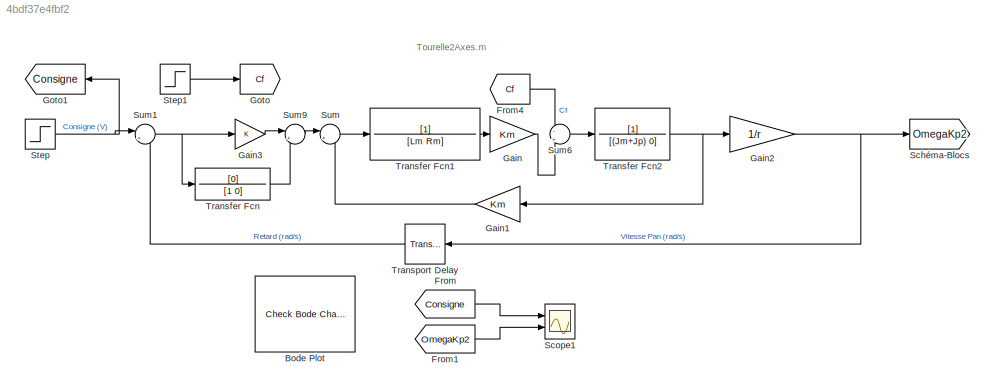
MODEL slx_4bdf37e4fbf2
KIND model
CONFIG AbsTol = auto
CONFIG EnableMultiTasking = off
CONFIG FixedStep = auto
CONFIG MaxStep = auto
CONFIG MinStep = auto
CONFIG RelTol = 1e-3
CONFIG SampleTimeConstraint = Unconstrained
CONFIG SolverName = VariableStepAuto
CONFIG StartTime = 0.0
CONFIG StopTime = 2
BLOCK [Reference] Bode Plot  REF=slctrlblks/Model Verification/Check Bode 
Characteristics
  InstantiateOnLoad = on
  Ports = []
  SourceBlock = slctrlblks/Model Verification/Check Bode \nCharacteristics
  SourceProductBaseCode = SD
  SourceType = Checks_Bode
BLOCK [From] From
  GotoTag = Consigne
BLOCK [From] From1
  GotoTag = OmegaKp2
BLOCK [From] From4
  GotoTag = Cf
BLOCK [Gain] Gain
  Gain = Km
BLOCK [Gain] Gain1
  Gain = Km
  NameLocation = top
BLOCK [Gain] Gain2
  Gain = 1/r
BLOCK [Gain] Gain3
BLOCK [Goto] Goto
  GotoTag = Cf
BLOCK [Goto] Goto1
  GotoTag = Consigne
  NameLocation = top
BLOCK [Goto] Schéma-Blocs
  GotoTag = OmegaKp2
BLOCK [Scope] Scope1
  Floating = off
  NumInputPorts = 2
  Ports = [2]
  ScopeSpecificationString = Simulink.scopes.TimeScopeBlockCfg('CurrentConfiguration', extmgr.ConfigurationSet(extmgr.Configuration('Core','General UI',true),extmgr.Configuration('Core','Source UI',true),extmgr.Configuration('Sources','WiredSimulink',true,'DataLoggingVariableName','ScopeData1'),extmgr.Configuration('Visuals','Time Domain',true,'SerializedDisplays',{struct('MinYLimReal','-0.1265','MaxYLimReal','1.12517','YLabe...<+2308ch>
BLOCK [Step] Step
  SampleTime = 0
  Time = 0
BLOCK [Step] Step1
  After = 0.304e-3
  SampleTime = 0
  Time = 0
BLOCK [Sum] Sum
  Inputs = |+-
  Ports = [2, 1]
BLOCK [Sum] Sum1
  Inputs = |+-
  Ports = [2, 1]
BLOCK [Sum] Sum6
  Inputs = -|+
  Ports = [2, 1]
BLOCK [Sum] Sum9
  Inputs = |++
  Ports = [2, 1]
BLOCK [TransferFcn] Transfer Fcn
  Denominator = [1 0]
  Numerator = [0]
BLOCK [TransferFcn] Transfer Fcn1
  Denominator = [Lm Rm]
BLOCK [TransferFcn] Transfer Fcn2
  Denominator = [(Jm+Jp) 0]
BLOCK [TransportDelay] Transport Delay
  DelayTime = .1
  NameLocation = top
  Ports = [1, 1]
ANNOTATION (root): Tourelle2Axes.m
LINE From1:1 -> Scope1:2
LINE From4:1 -> Sum6:1
LINE From:1 -> Scope1:1
LINE Gain1:1 -> Sum:2
NET Gain2:1 -> Schéma-Blocs:1, Transport Delay:1
LINE Gain3:1 -> Sum9:1
LINE Gain:1 -> Sum6:2
LINE Step1:1 -> Goto:1
NET Step:1 -> Goto1:1, Sum1:1
NET Sum1:1 -> Gain3:1, Transfer Fcn:1
LINE Sum6:1 -> Transfer Fcn2:1
LINE Sum9:1 -> Sum:1
LINE Sum:1 -> Transfer Fcn1:1
LINE Transfer Fcn1:1 -> Gain:1
NET Transfer Fcn2:1 -> Gain1:1, Gain2:1
LINE Transfer Fcn:1 -> Sum9:2
LINE Transport Delay:1 -> Sum1:2
note: NET lines group one-source signal fan-out (src -> all destinations, sorted); 1:1 wires keep LINE
